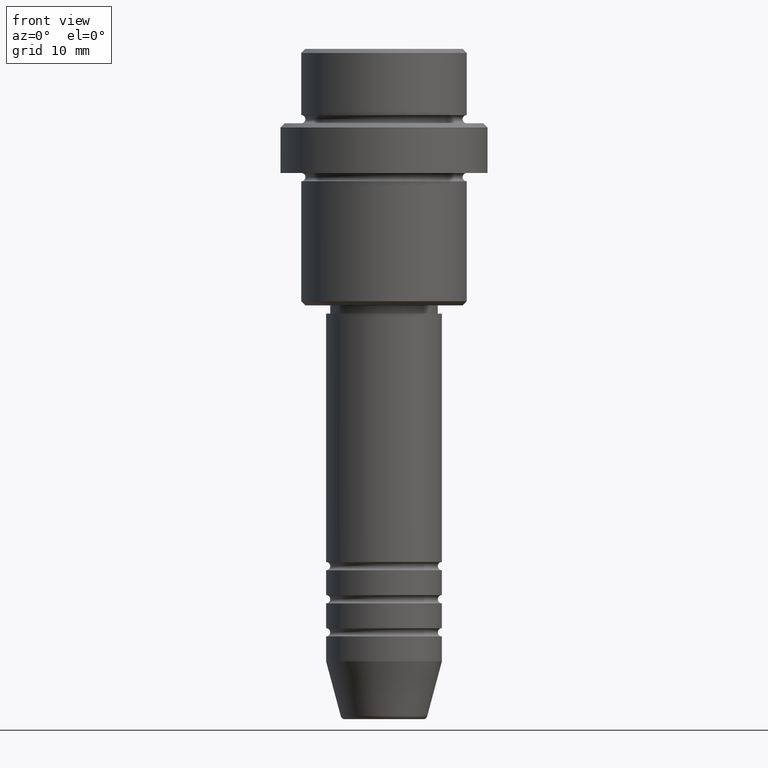
[diagram: clean part render]
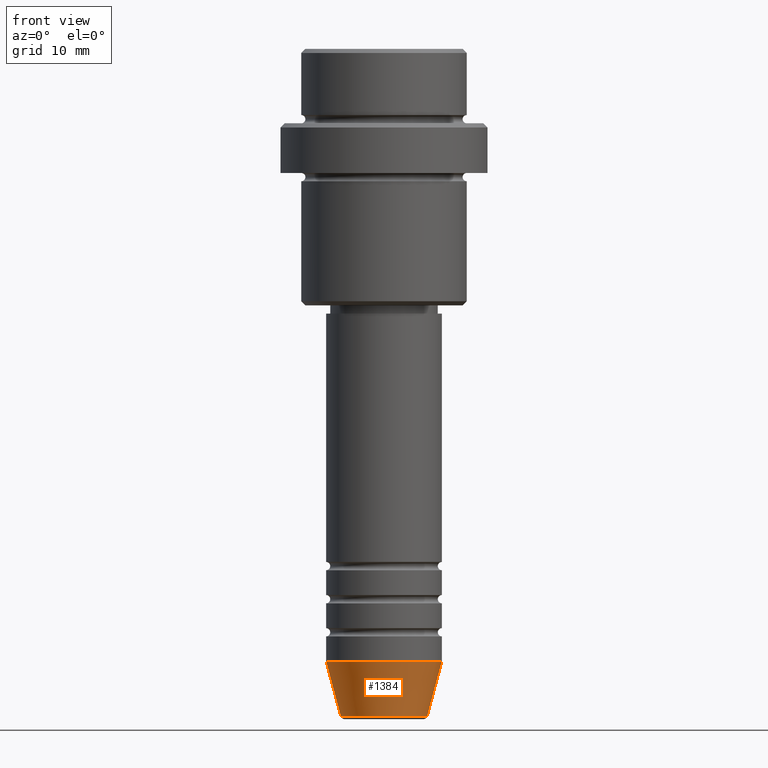
[diagram: same view with one face highlighted and labeled with its STEP entity id]
A machine part, front view. The second image highlights one B-rep face of the part: STEP entity #1384.
In plain terms, the highlighted conical surface has half-angle 15 deg.
Its self-contained STEP definition (entity closure, byte-faithful):
#9 = VERTEX_POINT ( 'NONE', #423 ) ;
#23 = CONICAL_SURFACE ( 'NONE', #251, 7.000000000000000000, 0.2617993877991496299 ) ;
#28 = CARTESIAN_POINT ( 'NONE',  ( 7.000000000000000000, 0.000000000000000000, -74.00000000000000000 ) ) ;
#43 = EDGE_LOOP ( 'NONE', ( #105, #252, #689, #920 ) ) ;
#59 = CARTESIAN_POINT ( 'NONE',  ( 0.000000000000000000, 0.000000000000000000, -80.62940952255128479 ) ) ;
#105 = ORIENTED_EDGE ( 'NONE', *, *, #505, .F. ) ;
#125 = DIRECTION ( 'NONE',  ( 0.2588190451025209615, 0.000000000000000000, 0.9659258262890682012 ) ) ;
#205 = CARTESIAN_POINT ( 'NONE',  ( 0.000000000000000000, 0.000000000000000000, -74.00000000000000000 ) ) ;
#209 = EDGE_CURVE ( 'NONE', #9, #373, #1329, .T. ) ;
#251 = AXIS2_PLACEMENT_3D ( 'NONE', #205, #1393, #460 ) ;
#252 = ORIENTED_EDGE ( 'NONE', *, *, #533, .T. ) ;
#266 = CARTESIAN_POINT ( 'NONE',  ( -7.000000000000000000, 8.572527594031473190E-16, -74.00000000000000000 ) ) ;
#355 = VERTEX_POINT ( 'NONE', #573 ) ;
#364 = VECTOR ( 'NONE', #125, 1000.000000000000000 ) ;
#366 = AXIS2_PLACEMENT_3D ( 'NONE', #59, #398, #606 ) ;
#373 = VERTEX_POINT ( 'NONE', #825 ) ;
#375 = LINE ( 'NONE', #266, #592 ) ;
#383 = CARTESIAN_POINT ( 'NONE',  ( -5.223655072137185940, 7.484830028987056230E-16, -80.62940952255128479 ) ) ;
#398 = DIRECTION ( 'NONE',  ( -0.000000000000000000, -0.000000000000000000, 1.000000000000000000 ) ) ;
#423 = CARTESIAN_POINT ( 'NONE',  ( 5.223655072137185940, 0.000000000000000000, -80.62940952255128479 ) ) ;
#460 = DIRECTION ( 'NONE',  ( 1.000000000000000000, 0.000000000000000000, 0.000000000000000000 ) ) ;
#505 = EDGE_CURVE ( 'NONE', #534, #355, #375, .T. ) ;
#533 = EDGE_CURVE ( 'NONE', #534, #9, #1060, .T. ) ;
#534 = VERTEX_POINT ( 'NONE', #383 ) ;
#561 = EDGE_CURVE ( 'NONE', #355, #373, #945, .T. ) ;
#573 = CARTESIAN_POINT ( 'NONE',  ( -7.000000000000000000, 8.572527594031473190E-16, -74.00000000000000000 ) ) ;
#578 = DIRECTION ( 'NONE',  ( -0.2588190451025209615, 3.169619151431767406E-17, 0.9659258262890682012 ) ) ;
#592 = VECTOR ( 'NONE', #578, 1000.000000000000000 ) ;
#606 = DIRECTION ( 'NONE',  ( 1.000000000000000000, 0.000000000000000000, 0.000000000000000000 ) ) ;
#689 = ORIENTED_EDGE ( 'NONE', *, *, #209, .T. ) ;
#703 = DIRECTION ( 'NONE',  ( -0.000000000000000000, -0.000000000000000000, 1.000000000000000000 ) ) ;
#825 = CARTESIAN_POINT ( 'NONE',  ( 7.000000000000000000, 0.000000000000000000, -74.00000000000000000 ) ) ;
#920 = ORIENTED_EDGE ( 'NONE', *, *, #561, .F. ) ;
#945 = CIRCLE ( 'NONE', #1267, 7.000000000000000000 ) ;
#1033 = CARTESIAN_POINT ( 'NONE',  ( 0.000000000000000000, 0.000000000000000000, -74.00000000000000000 ) ) ;
#1060 = CIRCLE ( 'NONE', #366, 5.223655072137185940 ) ;
#1159 = DIRECTION ( 'NONE',  ( 1.000000000000000000, 0.000000000000000000, 0.000000000000000000 ) ) ;
#1173 = FACE_OUTER_BOUND ( 'NONE', #43, .T. ) ;
#1267 = AXIS2_PLACEMENT_3D ( 'NONE', #1033, #703, #1159 ) ;
#1329 = LINE ( 'NONE', #28, #364 ) ;
#1384 = ADVANCED_FACE ( 'NONE', ( #1173 ), #23, .T. ) ;
#1393 = DIRECTION ( 'NONE',  ( -0.000000000000000000, -0.000000000000000000, 1.000000000000000000 ) ) ;